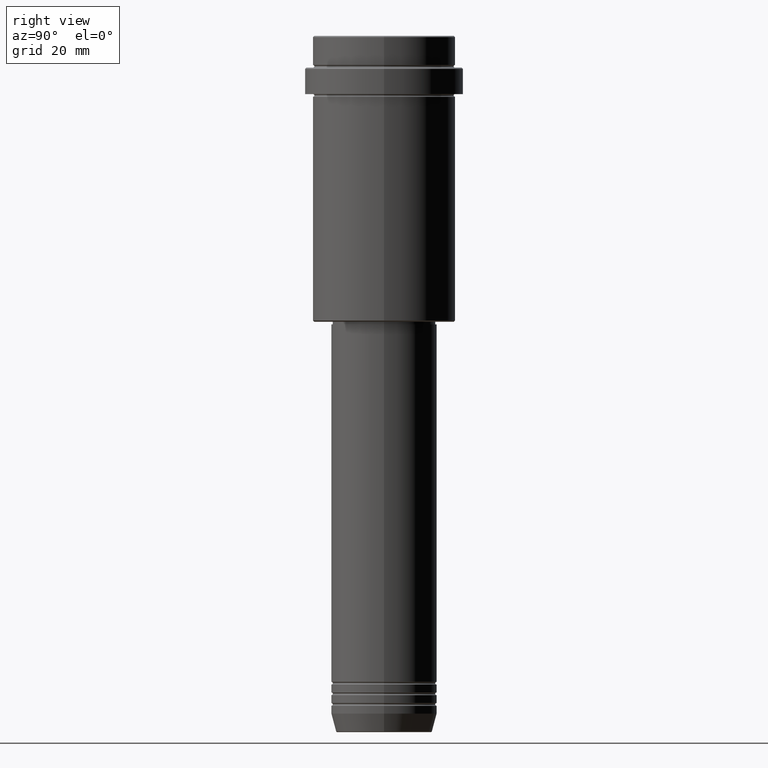
[diagram: clean part render]
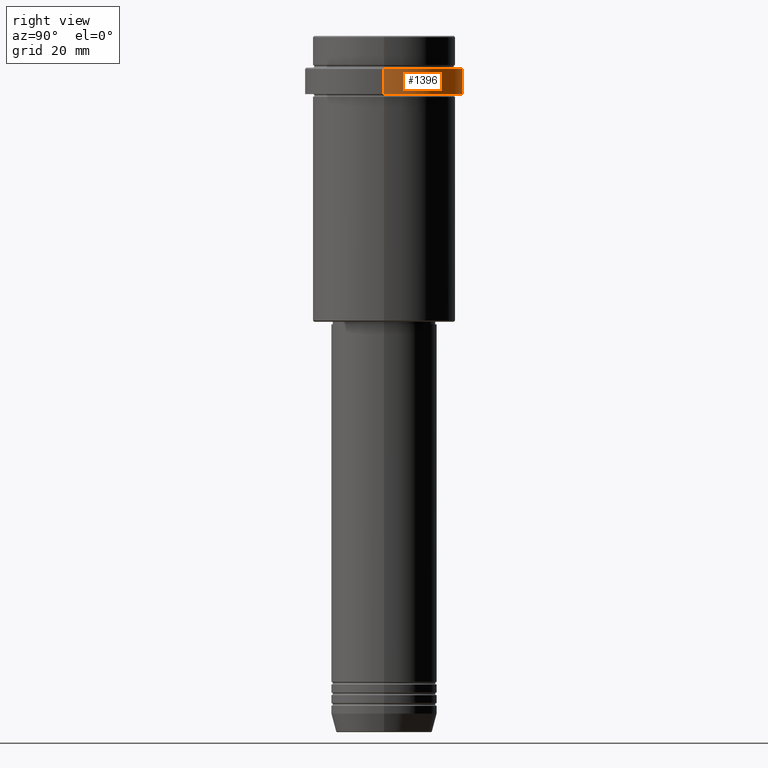
[diagram: same view with one face highlighted and labeled with its STEP entity id]
A machine part, right view. The second image highlights one B-rep face of the part: STEP entity #1396.
In plain terms, the highlighted cylindrical surface (partial cylindrical patch) has radius 30 mm, axis along (-0, -0, 1).
Its self-contained STEP definition (entity closure, byte-faithful):
#43 = DIRECTION ( 'NONE',  ( 1.000000000000000000, 0.000000000000000000, 0.000000000000000000 ) ) ;
#118 = VERTEX_POINT ( 'NONE', #303 ) ;
#193 = ORIENTED_EDGE ( 'NONE', *, *, #948, .T. ) ;
#248 = CARTESIAN_POINT ( 'NONE',  ( 0.000000000000000000, 0.000000000000000000, -22.00000000000000355 ) ) ;
#264 = AXIS2_PLACEMENT_3D ( 'NONE', #248, #1330, #272 ) ;
#272 = DIRECTION ( 'NONE',  ( 1.000000000000000000, 0.000000000000000000, 0.000000000000000000 ) ) ;
#290 = VECTOR ( 'NONE', #1281, 1000.000000000000000 ) ;
#303 = CARTESIAN_POINT ( 'NONE',  ( -29.99999999999999645, 3.673940397442058389E-15, -22.00000000000000355 ) ) ;
#339 = ORIENTED_EDGE ( 'NONE', *, *, #1410, .T. ) ;
#363 = CARTESIAN_POINT ( 'NONE',  ( 30.00000000000000000, 0.000000000000000000, 0.000000000000000000 ) ) ;
#418 = CARTESIAN_POINT ( 'NONE',  ( -30.00000000000000000, 3.673940397442059178E-15, 0.000000000000000000 ) ) ;
#436 = VERTEX_POINT ( 'NONE', #775 ) ;
#449 = ORIENTED_EDGE ( 'NONE', *, *, #490, .F. ) ;
#490 = EDGE_CURVE ( 'NONE', #1002, #1280, #1339, .T. ) ;
#585 = DIRECTION ( 'NONE',  ( -0.000000000000000000, -0.000000000000000000, 1.000000000000000000 ) ) ;
#590 = DIRECTION ( 'NONE',  ( -0.000000000000000000, -0.000000000000000000, 1.000000000000000000 ) ) ;
#604 = FACE_OUTER_BOUND ( 'NONE', #1110, .T. ) ;
#653 = CIRCLE ( 'NONE', #966, 30.00000000000000000 ) ;
#775 = CARTESIAN_POINT ( 'NONE',  ( -30.00000000000000000, 3.673940397442059178E-15, -12.50000000000000888 ) ) ;
#865 = CARTESIAN_POINT ( 'NONE',  ( 29.99999999999999645, 0.000000000000000000, -22.00000000000000355 ) ) ;
#923 = CARTESIAN_POINT ( 'NONE',  ( 0.000000000000000000, 0.000000000000000000, -12.50000000000000888 ) ) ;
#925 = CARTESIAN_POINT ( 'NONE',  ( 0.000000000000000000, 0.000000000000000000, 0.000000000000000000 ) ) ;
#948 = EDGE_CURVE ( 'NONE', #436, #1280, #653, .T. ) ;
#966 = AXIS2_PLACEMENT_3D ( 'NONE', #923, #1030, #43 ) ;
#1002 = VERTEX_POINT ( 'NONE', #865 ) ;
#1006 = CYLINDRICAL_SURFACE ( 'NONE', #1019, 30.00000000000000000 ) ;
#1016 = CIRCLE ( 'NONE', #264, 29.99999999999999645 ) ;
#1019 = AXIS2_PLACEMENT_3D ( 'NONE', #925, #590, #1020 ) ;
#1020 = DIRECTION ( 'NONE',  ( 1.000000000000000000, 0.000000000000000000, 0.000000000000000000 ) ) ;
#1030 = DIRECTION ( 'NONE',  ( 0.000000000000000000, 0.000000000000000000, -1.000000000000000000 ) ) ;
#1110 = EDGE_LOOP ( 'NONE', ( #339, #1323, #193, #449 ) ) ;
#1193 = CARTESIAN_POINT ( 'NONE',  ( 30.00000000000000000, 0.000000000000000000, -12.50000000000000888 ) ) ;
#1234 = EDGE_CURVE ( 'NONE', #118, #436, #1393, .T. ) ;
#1280 = VERTEX_POINT ( 'NONE', #1193 ) ;
#1281 = DIRECTION ( 'NONE',  ( -0.000000000000000000, -0.000000000000000000, 1.000000000000000000 ) ) ;
#1323 = ORIENTED_EDGE ( 'NONE', *, *, #1234, .T. ) ;
#1330 = DIRECTION ( 'NONE',  ( -0.000000000000000000, -0.000000000000000000, 1.000000000000000000 ) ) ;
#1332 = VECTOR ( 'NONE', #585, 1000.000000000000000 ) ;
#1339 = LINE ( 'NONE', #363, #1332 ) ;
#1393 = LINE ( 'NONE', #418, #290 ) ;
#1396 = ADVANCED_FACE ( 'NONE', ( #604 ), #1006, .T. ) ;
#1410 = EDGE_CURVE ( 'NONE', #1002, #118, #1016, .T. ) ;